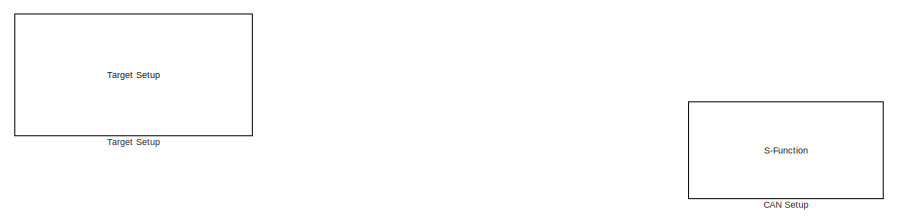
[diagram: root canvas - part 1/2, full width, top band]
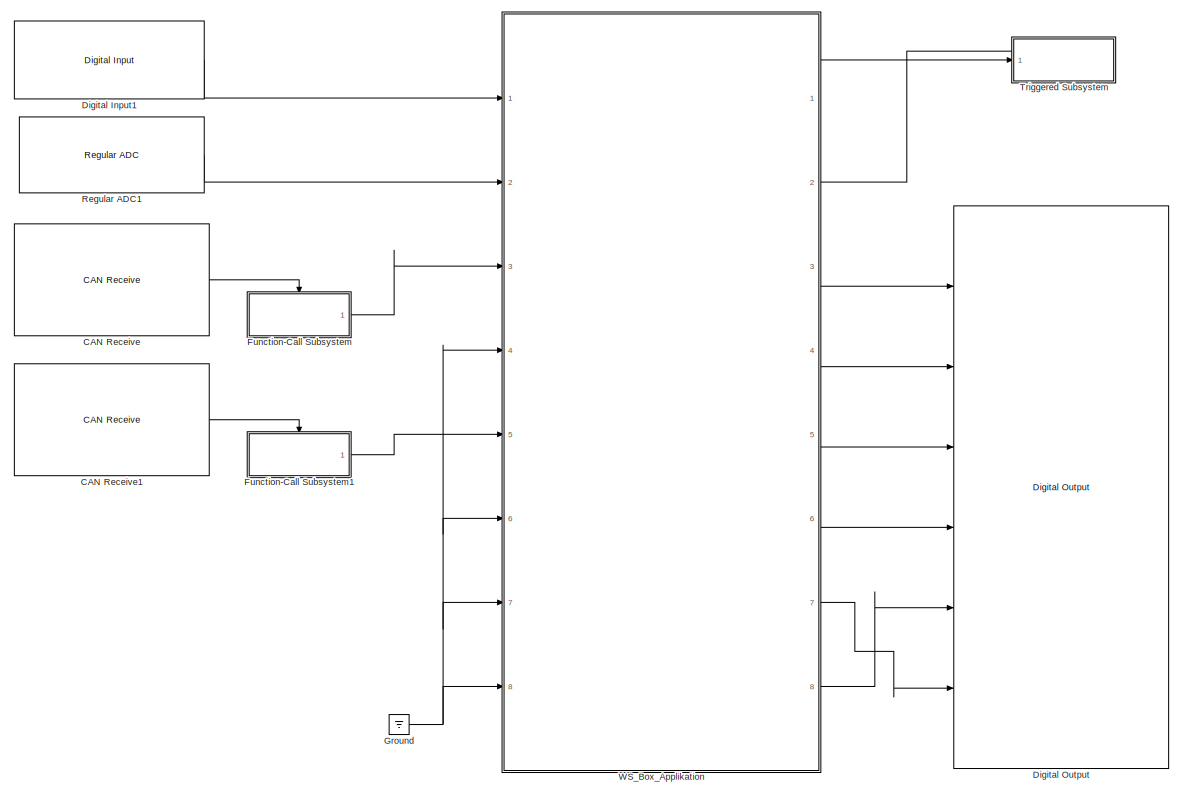
[diagram: root canvas - part 2/2, most of the canvas]
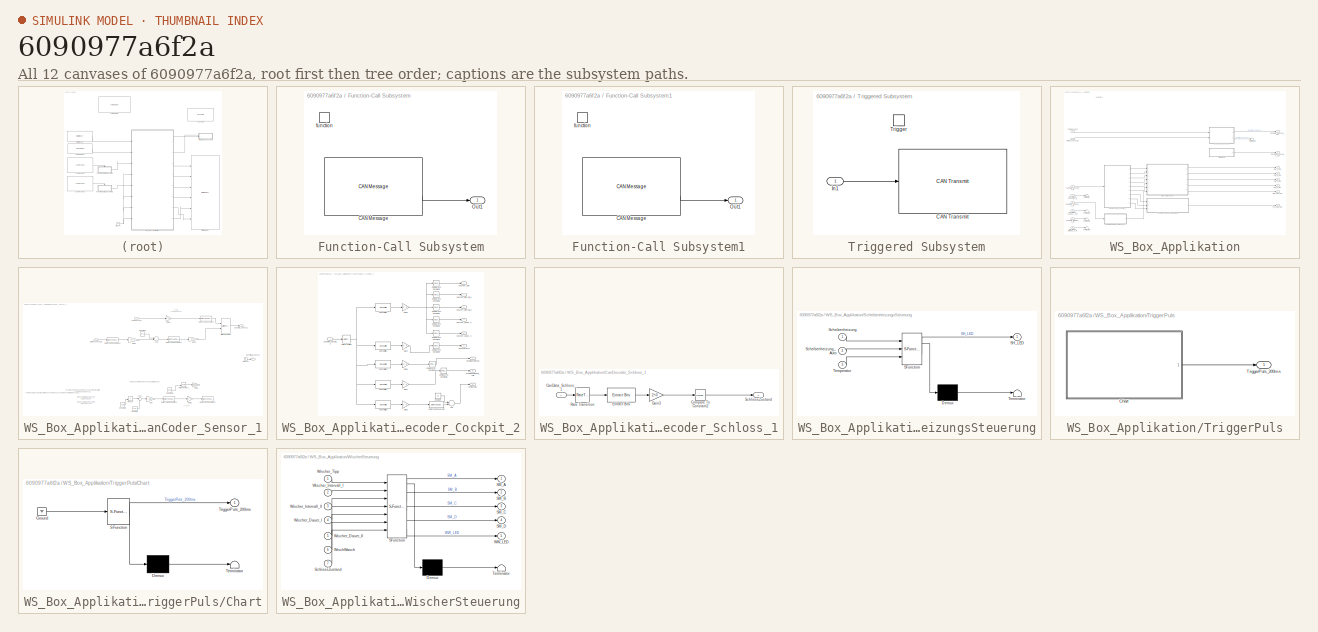
[diagram: thumbnail index - all 12 canvases of the model, root first then tree order]
MODEL slx_6090977a6f2a
KIND model
CONFIG AbsTol = auto
CONFIG EnableMultiTasking = off
CONFIG FixedStep = auto
CONFIG MaxStep = auto
CONFIG MinStep = auto
CONFIG PreLoadFcn = waijung.modelPreload; % Required for working with Waijung Blockset. Do not remove.
CONFIG RelTol = 1e-3
CONFIG SampleTimeConstraint = Unconstrained
CONFIG Solver = FixedStepAuto
CONFIG SolverName = FixedStepAuto
CONFIG StartTime = 0.0
CONFIG StopTime = 10.0
BLOCK [Reference] CAN Receive  REF=stm32f4_canbus_lib/CAN Receive
  Ports = [0, 1]
  SourceBlock = stm32f4_canbus_lib/CAN Receive
  SourceProductName = Waijung Blockset
  SourceType = stm32f4_can
BLOCK [Reference] CAN Receive1  REF=stm32f4_canbus_lib/CAN Receive
  Ports = [0, 1]
  SourceBlock = stm32f4_canbus_lib/CAN Receive
  SourceProductName = Waijung Blockset
  SourceType = stm32f4_can
BLOCK [S-Function] CAN Setup
  EnableBusSupport = off
  FunctionName = stm32f4_can
  Parameters = conf,canmodule,0,inputarray,outputarray,'','',confstr,sampletime,sampletimestr,blockid
  Ports = []
  SFcnIsStateOwnerBlock = off
  SFunctionDeploymentMode = off
BLOCK [Reference] Digital Input1  REF=stm32f4_io_lib/Digital Input
  Ports = [0, 1]
  SourceBlock = stm32f4_io_lib/Digital Input
  SourceProductName = Waijung Blockset
  SourceType = stm32f4_digital_input
BLOCK [Reference] Digital Output  REF=stm32f4_io_lib/Digital Output
  Ports = [6]
  SourceBlock = stm32f4_io_lib/Digital Output
  SourceProductName = Waijung Blockset
  SourceType = stm32f4_digital_output
BLOCK [SubSystem] Function-Call Subsystem
  Ports = [0, 1, 0, 1]
  RequestExecContextInheritance = off
  TreatAsAtomicUnit = on
  Variant = off
BLOCK [Reference] Function-Call Subsystem/CAN Message  REF=stm32f4_canbus_lib/CAN Message
  Ports = [0, 2]
  SourceBlock = stm32f4_canbus_lib/CAN Message
  SourceProductName = Waijung Blockset
  SourceType = stm32f4_can
BLOCK [Outport] Function-Call Subsystem/Out1
  IconDisplay = Port number
BLOCK [TriggerPort] Function-Call Subsystem/function
  Ports = []
  StatesWhenEnabling = held
  TriggerType = function-call
  VariantControl = Variant
BLOCK [SubSystem] Function-Call Subsystem1
  Ports = [0, 1, 0, 1]
  RequestExecContextInheritance = off
  TreatAsAtomicUnit = on
  Variant = off
BLOCK [Reference] Function-Call Subsystem1/CAN Message  REF=stm32f4_canbus_lib/CAN Message
  Ports = [0, 2]
  SourceBlock = stm32f4_canbus_lib/CAN Message
  SourceProductName = Waijung Blockset
  SourceType = stm32f4_can
BLOCK [Outport] Function-Call Subsystem1/Out1
  IconDisplay = Port number
BLOCK [TriggerPort] Function-Call Subsystem1/function
  Ports = []
  StatesWhenEnabling = held
  TriggerType = function-call
  VariantControl = Variant
BLOCK [Ground] Ground
BLOCK [Reference] Regular ADC1  REF=stm32f4_adc_lib/Regular ADC
  Ports = [0, 1]
  SourceBlock = stm32f4_adc_lib/Regular ADC
  SourceProductName = Waijung Blockset
  SourceType = stm32f4_regular_adc
BLOCK [Reference] Target Setup  REF=stm32f4_device_config_lib/Target Setup
  Ports = []
  Priority = 100
  SourceBlock = stm32f4_device_config_lib/Target Setup
  SourceProductName = Waijung Blockset
  SourceType = stm32f4_target_setup
BLOCK [SubSystem] Triggered Subsystem
  Ports = [1, 0, 0, 1]
  RequestExecContextInheritance = off
  TreatAsAtomicUnit = on
  Variant = off
BLOCK [Reference] Triggered Subsystem/CAN Transmit  REF=stm32f4_canbus_lib/CAN Transmit
  Ports = [1]
  SourceBlock = stm32f4_canbus_lib/CAN Transmit
  SourceProductName = Waijung Blockset
  SourceType = stm32f4_can
BLOCK [Inport] Triggered Subsystem/In1
  IconDisplay = Port number
BLOCK [TriggerPort] Triggered Subsystem/Trigger
  Ports = []
  StatesWhenEnabling = held
  VariantControl = Variant
BLOCK [SubSystem] WS_Box_Applikation
  Ports = [8, 8]
  RequestExecContextInheritance = off
  Variant = off
BLOCK [SubSystem] WS_Box_Applikation/CanCoder_Sensor_1
  Ports = [2, 2]
  RequestExecContextInheritance = off
  Variant = off
BLOCK [Sum] WS_Box_Applikation/CanCoder_Sensor_1/Add1
  InputSameDT = off
  Inputs = +-
  OutDataTypeStr = Inherit: Inherit via internal rule
  Ports = [2, 1]
  SaturateOnIntegerOverflow = off
BLOCK [Reference] WS_Box_Applikation/CanCoder_Sensor_1/Bitwise Operator3  REF=simulink/Logic and Bit
Operations/Bitwise
Operator
  Ports = [2, 1]
  SourceBlock = simulink/Logic and Bit\nOperations/Bitwise\nOperator
  SourceProductBaseCode = SL
  SourceType = Bitwise Operator
BLOCK [Outport] WS_Box_Applikation/CanCoder_Sensor_1/CanData_Sensor_1
  IconDisplay = Port number
BLOCK [Outport] WS_Box_Applikation/CanCoder_Sensor_1/CanTrigger_Sensor_1
  IconDisplay = Port number
  Port = 2
BLOCK [Constant] WS_Box_Applikation/CanCoder_Sensor_1/Constant
  Commented = on
  Value = 43.9
BLOCK [Constant] WS_Box_Applikation/CanCoder_Sensor_1/Constant1
  Value = 511
BLOCK [Constant] WS_Box_Applikation/CanCoder_Sensor_1/Constant2
  Commented = on
  Value = -13.8
BLOCK [Constant] WS_Box_Applikation/CanCoder_Sensor_1/Constant3
  Commented = on
  Value = -0.889
BLOCK [DataTypeConversion] WS_Box_Applikation/CanCoder_Sensor_1/Data Type Conversion
  OutDataTypeStr = uint16
  RndMeth = Floor
  SaturateOnIntegerOverflow = off
BLOCK [DataTypeConversion] WS_Box_Applikation/CanCoder_Sensor_1/Data Type Conversion1
  Commented = on
  OutDataTypeStr = uint16
  RndMeth = Floor
  SaturateOnIntegerOverflow = off
BLOCK [DataTypeConversion] WS_Box_Applikation/CanCoder_Sensor_1/Data Type Conversion2
  Commented = on
  OutDataTypeStr = uint16
  RndMeth = Floor
  SaturateOnIntegerOverflow = off
BLOCK [DataTypeConversion] WS_Box_Applikation/CanCoder_Sensor_1/Data Type Conversion3
  OutDataTypeStr = uint16
  RndMeth = Floor
  SaturateOnIntegerOverflow = off
BLOCK [DataTypeConversion] WS_Box_Applikation/CanCoder_Sensor_1/Data Type Conversion4
  OutDataTypeStr = uint16
  RndMeth = Floor
  SaturateOnIntegerOverflow = off
BLOCK [Inport] WS_Box_Applikation/CanCoder_Sensor_1/Distanzsensor_In
  IconDisplay = Port number
  Port = 2
BLOCK [Gain] WS_Box_Applikation/CanCoder_Sensor_1/Gain
  Commented = on
  Gain = 12.5
  OutDataTypeStr = Inherit: Inherit via internal rule
  ParamDataTypeStr = Inherit: Inherit via internal rule
  SaturateOnIntegerOverflow = off
BLOCK [Gain] WS_Box_Applikation/CanCoder_Sensor_1/Gain1
  Gain = 2^0
  OutDataTypeStr = Inherit: Inherit via internal rule
  ParamDataTypeStr = Inherit: Inherit via internal rule
  SaturateOnIntegerOverflow = off
BLOCK [Gain] WS_Box_Applikation/CanCoder_Sensor_1/Gain2
  Commented = on
  Gain = 2^1
  OutDataTypeStr = Inherit: Inherit via internal rule
  ParamDataTypeStr = Inherit: Inherit via internal rule
  SaturateOnIntegerOverflow = off
BLOCK [Gain] WS_Box_Applikation/CanCoder_Sensor_1/Gain3
  Gain = 2^1
  OutDataTypeStr = uint16
  ParamDataTypeStr = uint16
  SaturateOnIntegerOverflow = off
BLOCK [Gain] WS_Box_Applikation/CanCoder_Sensor_1/Gain4
  Gain = 2^-2
  OutDataTypeStr = Inherit: Inherit via internal rule
  ParamDataTypeStr = Inherit: Inherit via internal rule
  SaturateOnIntegerOverflow = off
BLOCK [Gain] WS_Box_Applikation/CanCoder_Sensor_1/Gain6
  Commented = on
  Gain = 9.3707
  OutDataTypeStr = Inherit: Inherit via internal rule
  ParamDataTypeStr = Inherit: Inherit via internal rule
  SaturateOnIntegerOverflow = off
BLOCK [Ground] WS_Box_Applikation/CanCoder_Sensor_1/Ground1
BLOCK [Inport] WS_Box_Applikation/CanCoder_Sensor_1/Lichtsensor_In
  IconDisplay = Port number
BLOCK [Math] WS_Box_Applikation/CanCoder_Sensor_1/Math Function1
  Commented = on
  Operator = pow
  Ports = [2, 1]
BLOCK [Product] WS_Box_Applikation/CanCoder_Sensor_1/Product
  Commented = on
  InputSameDT = off
  OutDataTypeStr = Inherit: Inherit via internal rule
  Ports = [2, 1]
  RndMeth = Floor
  SaturateOnIntegerOverflow = off
BLOCK [Sum] WS_Box_Applikation/CanCoder_Sensor_1/Sum
  Commented = on
  IconShape = round
  InputSameDT = off
  Inputs = |++
  OutDataTypeStr = Inherit: Inherit via internal rule
  Ports = [2, 1]
  SaturateOnIntegerOverflow = off
BLOCK [Inport] WS_Box_Applikation/CanData_Bremse_2_In
  IconDisplay = Port number
  Port = 7
BLOCK [Inport] WS_Box_Applikation/CanData_Cockpit_2_In
  IconDisplay = Port number
  Port = 3
BLOCK [Inport] WS_Box_Applikation/CanData_Schloss_1_In
  IconDisplay = Port number
  Port = 5
BLOCK [Outport] WS_Box_Applikation/CanData_Sensor_1_Out
  IconDisplay = Port number
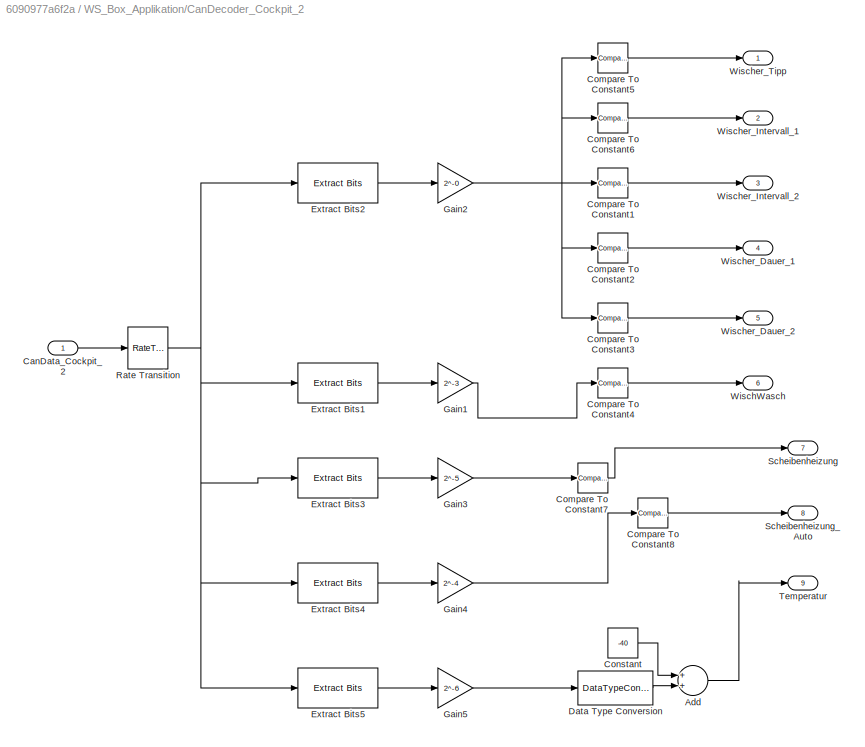
BLOCK [SubSystem] WS_Box_Applikation/CanDecoder_Cockpit_2
  Ports = [1, 9]
  RequestExecContextInheritance = off
  Variant = off
BLOCK [Sum] WS_Box_Applikation/CanDecoder_Cockpit_2/Add
  InputSameDT = off
  OutDataTypeStr = Inherit: Inherit via internal rule
  Ports = [2, 1]
  SaturateOnIntegerOverflow = off
BLOCK [Inport] WS_Box_Applikation/CanDecoder_Cockpit_2/CanData_Cockpit_2
  IconDisplay = Port number
BLOCK [Reference] WS_Box_Applikation/CanDecoder_Cockpit_2/Compare To Constant1  REF=simulink/Logic and Bit
Operations/Compare
To Constant
  Ports = [1, 1]
  SourceBlock = simulink/Logic and Bit\nOperations/Compare\nTo Constant
  SourceProductBaseCode = SL
  SourceType = Compare To Constant
BLOCK [Reference] WS_Box_Applikation/CanDecoder_Cockpit_2/Compare To Constant2  REF=simulink/Logic and Bit
Operations/Compare
To Constant
  Ports = [1, 1]
  SourceBlock = simulink/Logic and Bit\nOperations/Compare\nTo Constant
  SourceProductBaseCode = SL
  SourceType = Compare To Constant
BLOCK [Reference] WS_Box_Applikation/CanDecoder_Cockpit_2/Compare To Constant3  REF=simulink/Logic and Bit
Operations/Compare
To Constant
  Ports = [1, 1]
  SourceBlock = simulink/Logic and Bit\nOperations/Compare\nTo Constant
  SourceProductBaseCode = SL
  SourceType = Compare To Constant
BLOCK [Reference] WS_Box_Applikation/CanDecoder_Cockpit_2/Compare To Constant4  REF=simulink/Logic and Bit
Operations/Compare
To Constant
  Ports = [1, 1]
  SourceBlock = simulink/Logic and Bit\nOperations/Compare\nTo Constant
  SourceProductBaseCode = SL
  SourceType = Compare To Constant
BLOCK [Reference] WS_Box_Applikation/CanDecoder_Cockpit_2/Compare To Constant5  REF=simulink/Logic and Bit
Operations/Compare
To Constant
  Ports = [1, 1]
  SourceBlock = simulink/Logic and Bit\nOperations/Compare\nTo Constant
  SourceProductBaseCode = SL
  SourceType = Compare To Constant
BLOCK [Reference] WS_Box_Applikation/CanDecoder_Cockpit_2/Compare To Constant6  REF=simulink/Logic and Bit
Operations/Compare
To Constant
  Ports = [1, 1]
  SourceBlock = simulink/Logic and Bit\nOperations/Compare\nTo Constant
  SourceProductBaseCode = SL
  SourceType = Compare To Constant
BLOCK [Reference] WS_Box_Applikation/CanDecoder_Cockpit_2/Compare To Constant7  REF=simulink/Logic and Bit
Operations/Compare
To Constant
  Ports = [1, 1]
  SourceBlock = simulink/Logic and Bit\nOperations/Compare\nTo Constant
  SourceProductBaseCode = SL
  SourceType = Compare To Constant
BLOCK [Reference] WS_Box_Applikation/CanDecoder_Cockpit_2/Compare To Constant8  REF=simulink/Logic and Bit
Operations/Compare
To Constant
  Ports = [1, 1]
  SourceBlock = simulink/Logic and Bit\nOperations/Compare\nTo Constant
  SourceProductBaseCode = SL
  SourceType = Compare To Constant
BLOCK [Constant] WS_Box_Applikation/CanDecoder_Cockpit_2/Constant
  Value = -40
BLOCK [DataTypeConversion] WS_Box_Applikation/CanDecoder_Cockpit_2/Data Type Conversion
  SaturateOnIntegerOverflow = off
BLOCK [Reference] WS_Box_Applikation/CanDecoder_Cockpit_2/Extract Bits1  REF=simulink/Logic and Bit
Operations/Extract Bits
  Ports = [1, 1]
  SourceBlock = simulink/Logic and Bit\nOperations/Extract Bits
  SourceProductBaseCode = SL
  SourceType = Extract Bits
BLOCK [Reference] WS_Box_Applikation/CanDecoder_Cockpit_2/Extract Bits2  REF=simulink/Logic and Bit
Operations/Extract Bits
  Ports = [1, 1]
  SourceBlock = simulink/Logic and Bit\nOperations/Extract Bits
  SourceProductBaseCode = SL
  SourceType = Extract Bits
BLOCK [Reference] WS_Box_Applikation/CanDecoder_Cockpit_2/Extract Bits3  REF=simulink/Logic and Bit
Operations/Extract Bits
  Ports = [1, 1]
  SourceBlock = simulink/Logic and Bit\nOperations/Extract Bits
  SourceProductBaseCode = SL
  SourceType = Extract Bits
BLOCK [Reference] WS_Box_Applikation/CanDecoder_Cockpit_2/Extract Bits4  REF=simulink/Logic and Bit
Operations/Extract Bits
  Ports = [1, 1]
  SourceBlock = simulink/Logic and Bit\nOperations/Extract Bits
  SourceProductBaseCode = SL
  SourceType = Extract Bits
BLOCK [Reference] WS_Box_Applikation/CanDecoder_Cockpit_2/Extract Bits5  REF=simulink/Logic and Bit
Operations/Extract Bits
  Ports = [1, 1]
  SourceBlock = simulink/Logic and Bit\nOperations/Extract Bits
  SourceProductBaseCode = SL
  SourceType = Extract Bits
BLOCK [Gain] WS_Box_Applikation/CanDecoder_Cockpit_2/Gain1
  Gain = 2^-3
  OutDataTypeStr = Inherit: Inherit via internal rule
  ParamDataTypeStr = Inherit: Inherit via internal rule
  SaturateOnIntegerOverflow = off
BLOCK [Gain] WS_Box_Applikation/CanDecoder_Cockpit_2/Gain2
  Gain = 2^-0
  OutDataTypeStr = Inherit: Inherit via internal rule
  ParamDataTypeStr = Inherit: Inherit via internal rule
  SaturateOnIntegerOverflow = off
BLOCK [Gain] WS_Box_Applikation/CanDecoder_Cockpit_2/Gain3
  Gain = 2^-5
  OutDataTypeStr = Inherit: Inherit via internal rule
  ParamDataTypeStr = Inherit: Inherit via internal rule
  SaturateOnIntegerOverflow = off
BLOCK [Gain] WS_Box_Applikation/CanDecoder_Cockpit_2/Gain4
  Gain = 2^-4
  OutDataTypeStr = Inherit: Inherit via internal rule
  ParamDataTypeStr = Inherit: Inherit via internal rule
  SaturateOnIntegerOverflow = off
BLOCK [Gain] WS_Box_Applikation/CanDecoder_Cockpit_2/Gain5
  Gain = 2^-6
  OutDataTypeStr = Inherit: Inherit via internal rule
  ParamDataTypeStr = Inherit: Inherit via internal rule
  SaturateOnIntegerOverflow = off
BLOCK [RateTransition] WS_Box_Applikation/CanDecoder_Cockpit_2/Rate Transition
  Deterministic = off
  OutPortSampleTimeOpt = Inherit
BLOCK [Outport] WS_Box_Applikation/CanDecoder_Cockpit_2/Scheibenheizung
  IconDisplay = Port number
  Port = 7
BLOCK [Outport] WS_Box_Applikation/CanDecoder_Cockpit_2/Scheibenheizung_Auto
  IconDisplay = Port number
  Port = 8
BLOCK [Outport] WS_Box_Applikation/CanDecoder_Cockpit_2/Temperatur
  IconDisplay = Port number
  Port = 9
BLOCK [Outport] WS_Box_Applikation/CanDecoder_Cockpit_2/WischWasch
  IconDisplay = Port number
  Port = 6
BLOCK [Outport] WS_Box_Applikation/CanDecoder_Cockpit_2/Wischer_Dauer_1
  IconDisplay = Port number
  Port = 4
BLOCK [Outport] WS_Box_Applikation/CanDecoder_Cockpit_2/Wischer_Dauer_2
  IconDisplay = Port number
  Port = 5
BLOCK [Outport] WS_Box_Applikation/CanDecoder_Cockpit_2/Wischer_Intervall_1
  IconDisplay = Port number
  Port = 2
BLOCK [Outport] WS_Box_Applikation/CanDecoder_Cockpit_2/Wischer_Intervall_2
  IconDisplay = Port number
  Port = 3
BLOCK [Outport] WS_Box_Applikation/CanDecoder_Cockpit_2/Wischer_Tipp
  IconDisplay = Port number
BLOCK [SubSystem] WS_Box_Applikation/CanDecoder_Schloss_1
  Ports = [1, 1]
  RequestExecContextInheritance = off
  Variant = off
BLOCK [Inport] WS_Box_Applikation/CanDecoder_Schloss_1/CanData_Schloss_1
  IconDisplay = Port number
BLOCK [Reference] WS_Box_Applikation/CanDecoder_Schloss_1/Compare To Constant2  REF=simulink/Logic and Bit
Operations/Compare
To Constant
  Ports = [1, 1]
  SourceBlock = simulink/Logic and Bit\nOperations/Compare\nTo Constant
  SourceProductBaseCode = SL
  SourceType = Compare To Constant
BLOCK [Reference] WS_Box_Applikation/CanDecoder_Schloss_1/Extract Bits  REF=simulink/Logic and Bit
Operations/Extract Bits
  Ports = [1, 1]
  SourceBlock = simulink/Logic and Bit\nOperations/Extract Bits
  SourceProductBaseCode = SL
  SourceType = Extract Bits
BLOCK [Gain] WS_Box_Applikation/CanDecoder_Schloss_1/Gain3
  Gain = 2^-0
  OutDataTypeStr = uint8
  ParamDataTypeStr = Inherit: Inherit via internal rule
  SaturateOnIntegerOverflow = off
BLOCK [RateTransition] WS_Box_Applikation/CanDecoder_Schloss_1/Rate Transition
  Deterministic = off
  OutPortSampleTimeOpt = Inherit
BLOCK [Outport] WS_Box_Applikation/CanDecoder_Schloss_1/SchliessZustand
  IconDisplay = Port number
BLOCK [Inport] WS_Box_Applikation/CanTrigger_Bremse_2_In
  IconDisplay = Port number
  Port = 8
BLOCK [Inport] WS_Box_Applikation/CanTrigger_Cockpit_2_In
  IconDisplay = Port number
  Port = 4
BLOCK [Inport] WS_Box_Applikation/CanTrigger_Schloss_1_In
  IconDisplay = Port number
  Port = 6
BLOCK [Outport] WS_Box_Applikation/CanTrigger_Sensor_1_Out
  IconDisplay = Port number
  Port = 2
BLOCK [Inport] WS_Box_Applikation/Distanzsensor_In
  IconDisplay = Port number
  Port = 2
BLOCK [Inport] WS_Box_Applikation/Lichtsensor_In
  IconDisplay = Port number
BLOCK [Outport] WS_Box_Applikation/SH_LED_Out
  IconDisplay = Port number
  Port = 8
BLOCK [Outport] WS_Box_Applikation/SM_A_Out
  IconDisplay = Port number
  Port = 3
BLOCK [Outport] WS_Box_Applikation/SM_B_Out
  IconDisplay = Port number
  Port = 4
BLOCK [Outport] WS_Box_Applikation/SM_C_Out
  IconDisplay = Port number
  Port = 5
BLOCK [Outport] WS_Box_Applikation/SM_D_Out
  IconDisplay = Port number
  Port = 6
BLOCK [SubSystem] WS_Box_Applikation/ScheibenheizungsSteuerung
  ErrorFcn = Stateflow.Translate.translate
  PermitHierarchicalResolution = ExplicitOnly
  Ports = [3, 1]
  RequestExecContextInheritance = off
  SFBlockType = Chart
  TreatAsAtomicUnit = on
  Variant = off
BLOCK [Demux] WS_Box_Applikation/ScheibenheizungsSteuerung/ Demux 
  DisplayOption = bar
  Outputs = 1
  Ports = [1, 1]
BLOCK [S-Function] WS_Box_Applikation/ScheibenheizungsSteuerung/ SFunction 
  EnableBusSupport = on
  FunctionName = sf_sfun
  PortCounts = [3 2]
  Ports = [3, 2]
  SFcnIsStateOwnerBlock = off
  SFunctionDeploymentMode = off
  Tag = Stateflow S-Function WischerModul_0112 6
BLOCK [Terminator] WS_Box_Applikation/ScheibenheizungsSteuerung/ Terminator 
BLOCK [Outport] WS_Box_Applikation/ScheibenheizungsSteuerung/SH_LED
  IconDisplay = Port number
BLOCK [Inport] WS_Box_Applikation/ScheibenheizungsSteuerung/Scheibenheizung
  IconDisplay = Port number
BLOCK [Inport] WS_Box_Applikation/ScheibenheizungsSteuerung/Scheibenheizung_Auto
  IconDisplay = Port number
  Port = 2
BLOCK [Inport] WS_Box_Applikation/ScheibenheizungsSteuerung/Temperatur
  IconDisplay = Port number
  Port = 3
BLOCK [Terminator] WS_Box_Applikation/Terminator
BLOCK [Terminator] WS_Box_Applikation/Terminator2
BLOCK [Terminator] WS_Box_Applikation/Terminator3
BLOCK [Terminator] WS_Box_Applikation/Terminator4
BLOCK [Terminator] WS_Box_Applikation/Terminator5
BLOCK [SubSystem] WS_Box_Applikation/TriggerPuls
  Ports = [0, 1]
  RequestExecContextInheritance = off
  Variant = off
BLOCK [SubSystem] WS_Box_Applikation/TriggerPuls/Chart
  ErrorFcn = Stateflow.Translate.translate
  PermitHierarchicalResolution = ExplicitOnly
  Ports = [0, 1]
  RequestExecContextInheritance = off
  SFBlockType = Chart
  TreatAsAtomicUnit = on
  Variant = off
BLOCK [Demux] WS_Box_Applikation/TriggerPuls/Chart/ Demux 
  DisplayOption = bar
  Outputs = 1
  Ports = [1, 1]
BLOCK [Ground] WS_Box_Applikation/TriggerPuls/Chart/ Ground 
BLOCK [S-Function] WS_Box_Applikation/TriggerPuls/Chart/ SFunction 
  EnableBusSupport = on
  FunctionName = sf_sfun
  PortCounts = [1 2]
  Ports = [1, 2]
  SFcnIsStateOwnerBlock = off
  SFunctionDeploymentMode = off
  Tag = Stateflow S-Function WischerModul_0112 8
BLOCK [Terminator] WS_Box_Applikation/TriggerPuls/Chart/ Terminator 
BLOCK [Outport] WS_Box_Applikation/TriggerPuls/Chart/TriggerPuls_200ms
  IconDisplay = Port number
  VectorParamsAs1DForOutWhenUnconnected = on
BLOCK [Outport] WS_Box_Applikation/TriggerPuls/TriggerPuls_200ms
  IconDisplay = Port number
BLOCK [Outport] WS_Box_Applikation/WW_LED_Out
  IconDisplay = Port number
  Port = 7
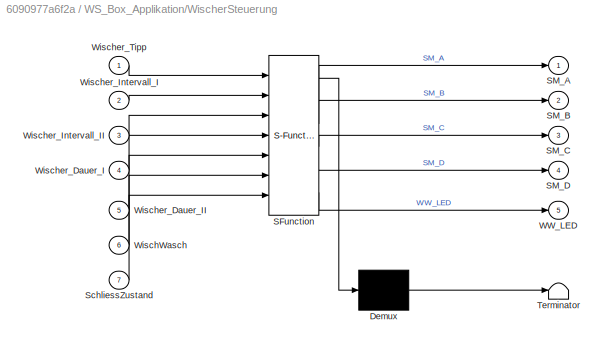
BLOCK [SubSystem] WS_Box_Applikation/WischerSteuerung
  ErrorFcn = Stateflow.Translate.translate
  PermitHierarchicalResolution = ExplicitOnly
  Ports = [7, 5]
  RequestExecContextInheritance = off
  SFBlockType = Chart
  TreatAsAtomicUnit = on
  Variant = off
BLOCK [Demux] WS_Box_Applikation/WischerSteuerung/ Demux 
  DisplayOption = bar
  Outputs = 1
  Ports = [1, 1]
BLOCK [S-Function] WS_Box_Applikation/WischerSteuerung/ SFunction 
  EnableBusSupport = on
  FunctionName = sf_sfun
  PortCounts = [7 6]
  Ports = [7, 6]
  SFcnIsStateOwnerBlock = off
  SFunctionDeploymentMode = off
  Tag = Stateflow S-Function WischerModul_0112 5
BLOCK [Terminator] WS_Box_Applikation/WischerSteuerung/ Terminator 
BLOCK [Outport] WS_Box_Applikation/WischerSteuerung/SM_A
  IconDisplay = Port number
BLOCK [Outport] WS_Box_Applikation/WischerSteuerung/SM_B
  IconDisplay = Port number
  Port = 2
BLOCK [Outport] WS_Box_Applikation/WischerSteuerung/SM_C
  IconDisplay = Port number
  Port = 3
BLOCK [Outport] WS_Box_Applikation/WischerSteuerung/SM_D
  IconDisplay = Port number
  Port = 4
BLOCK [Inport] WS_Box_Applikation/WischerSteuerung/SchliessZustand
  IconDisplay = Port number
  Port = 7
BLOCK [Outport] WS_Box_Applikation/WischerSteuerung/WW_LED
  IconDisplay = Port number
  Port = 5
BLOCK [Inport] WS_Box_Applikation/WischerSteuerung/WischWasch
  IconDisplay = Port number
  Port = 6
BLOCK [Inport] WS_Box_Applikation/WischerSteuerung/Wischer_Dauer_I
  IconDisplay = Port number
  Port = 4
BLOCK [Inport] WS_Box_Applikation/WischerSteuerung/Wischer_Dauer_II
  IconDisplay = Port number
  Port = 5
BLOCK [Inport] WS_Box_Applikation/WischerSteuerung/Wischer_Intervall_I
  IconDisplay = Port number
  Port = 2
BLOCK [Inport] WS_Box_Applikation/WischerSteuerung/Wischer_Intervall_II
  IconDisplay = Port number
  Port = 3
BLOCK [Inport] WS_Box_Applikation/WischerSteuerung/Wischer_Tipp
  IconDisplay = Port number
ANNOTATION WS_Box_Applikation: Applikation
ANNOTATION WS_Box_Applikation/CanCoder_Sensor_1: 1 = hell 0 = dunkel????
ANNOTATION WS_Box_Applikation/CanCoder_Sensor_1: 40cm im Laboraufbau entsprechen 500m in der Realität! -> Saklierungsfaktor = 12,5
ANNOTATION WS_Box_Applikation/CanCoder_Sensor_1: 2^-2???
ANNOTATION WS_Box_Applikation/CanCoder_Sensor_1: Anmerkung: Im Laboraufbau wird angenommen, dass der verwendete Infrarotsensor die Entfernung linear vermisst. Die Grenzen des Messbereichs sollen dabei 0m bzw. 500m entsprechen.
ANNOTATION WS_Box_Applikation/CanCoder_Sensor_1: Die Punkte für die Regression: (3 ; 2,5) und (0,3 ; 40) ergeben die lineare Funktion: f(x) = -13,8·x+43,9
ANNOTATION WS_Box_Applikation/CanCoder_Sensor_1: Regression mit mehreren Punkten ergibt (präziser):
LINE CAN Receive1:1 -> Function-Call Subsystem1:trigger
LINE CAN Receive:1 -> Function-Call Subsystem:trigger
LINE Digital Input1:1 -> WS_Box_Applikation:1
LINE Function-Call Subsystem/CAN Message:2 -> Function-Call Subsystem/Out1:1
LINE Function-Call Subsystem1/CAN Message:2 -> Function-Call Subsystem1/Out1:1
LINE Function-Call Subsystem1:1 -> WS_Box_Applikation:5
LINE Function-Call Subsystem:1 -> WS_Box_Applikation:3
NET Ground:1 -> WS_Box_Applikation:4, WS_Box_Applikation:6, WS_Box_Applikation:7, WS_Box_Applikation:8
LINE Regular ADC1:1 -> WS_Box_Applikation:2
LINE Triggered Subsystem/In1:1 -> Triggered Subsystem/CAN Transmit:1
LINE WS_Box_Applikation/CanCoder_Sensor_1/Add1:1 -> WS_Box_Applikation/CanCoder_Sensor_1/Data Type Conversion3:1
LINE WS_Box_Applikation/CanCoder_Sensor_1/Bitwise Operator3:1 -> WS_Box_Applikation/CanCoder_Sensor_1/CanData_Sensor_1:1
LINE WS_Box_Applikation/CanCoder_Sensor_1/Constant1:1 -> WS_Box_Applikation/CanCoder_Sensor_1/Add1:1
LINE WS_Box_Applikation/CanCoder_Sensor_1/Constant2:1 -> WS_Box_Applikation/CanCoder_Sensor_1/Product:2
LINE WS_Box_Applikation/CanCoder_Sensor_1/Constant3:1 -> WS_Box_Applikation/CanCoder_Sensor_1/Math Function1:2
LINE WS_Box_Applikation/CanCoder_Sensor_1/Constant:1 -> WS_Box_Applikation/CanCoder_Sensor_1/Sum:2
LINE WS_Box_Applikation/CanCoder_Sensor_1/Data Type Conversion2:1 -> WS_Box_Applikation/CanCoder_Sensor_1/Gain2:1
LINE WS_Box_Applikation/CanCoder_Sensor_1/Data Type Conversion3:1 -> WS_Box_Applikation/CanCoder_Sensor_1/Gain3:1
LINE WS_Box_Applikation/CanCoder_Sensor_1/Data Type Conversion4:1 -> WS_Box_Applikation/CanCoder_Sensor_1/Gain4:1
LINE WS_Box_Applikation/CanCoder_Sensor_1/Data Type Conversion:1 -> WS_Box_Applikation/CanCoder_Sensor_1/Bitwise Operator3:1
LINE WS_Box_Applikation/CanCoder_Sensor_1/Distanzsensor_In:1 -> WS_Box_Applikation/CanCoder_Sensor_1/Data Type Conversion4:1
LINE WS_Box_Applikation/CanCoder_Sensor_1/Gain1:1 -> WS_Box_Applikation/CanCoder_Sensor_1/Data Type Conversion:1
LINE WS_Box_Applikation/CanCoder_Sensor_1/Gain2:1 -> WS_Box_Applikation/CanCoder_Sensor_1/Data Type Conversion1:1
LINE WS_Box_Applikation/CanCoder_Sensor_1/Gain3:1 -> WS_Box_Applikation/CanCoder_Sensor_1/Bitwise Operator3:2
LINE WS_Box_Applikation/CanCoder_Sensor_1/Gain4:1 -> WS_Box_Applikation/CanCoder_Sensor_1/Add1:2
LINE WS_Box_Applikation/CanCoder_Sensor_1/Gain:1 -> WS_Box_Applikation/CanCoder_Sensor_1/Data Type Conversion2:1
LINE WS_Box_Applikation/CanCoder_Sensor_1/Ground1:1 -> WS_Box_Applikation/CanCoder_Sensor_1/CanTrigger_Sensor_1:1
LINE WS_Box_Applikation/CanCoder_Sensor_1/Lichtsensor_In:1 -> WS_Box_Applikation/CanCoder_Sensor_1/Gain1:1
LINE WS_Box_Applikation/CanCoder_Sensor_1/Math Function1:1 -> WS_Box_Applikation/CanCoder_Sensor_1/Gain6:1
LINE WS_Box_Applikation/CanCoder_Sensor_1/Product:1 -> WS_Box_Applikation/CanCoder_Sensor_1/Sum:1
LINE WS_Box_Applikation/CanCoder_Sensor_1/Sum:1 -> WS_Box_Applikation/CanCoder_Sensor_1/Gain:1
LINE WS_Box_Applikation/CanCoder_Sensor_1:1 -> WS_Box_Applikation/CanData_Sensor_1_Out:1
LINE WS_Box_Applikation/CanCoder_Sensor_1:2 -> WS_Box_Applikation/Terminator2:1
LINE WS_Box_Applikation/CanData_Bremse_2_In:1 -> WS_Box_Applikation/Terminator4:1
LINE WS_Box_Applikation/CanData_Cockpit_2_In:1 -> WS_Box_Applikation/CanDecoder_Cockpit_2:1
LINE WS_Box_Applikation/CanData_Schloss_1_In:1 -> WS_Box_Applikation/CanDecoder_Schloss_1:1
LINE WS_Box_Applikation/CanDecoder_Cockpit_2/Add:1 -> WS_Box_Applikation/CanDecoder_Cockpit_2/Temperatur:1
LINE WS_Box_Applikation/CanDecoder_Cockpit_2/CanData_Cockpit_2:1 -> WS_Box_Applikation/CanDecoder_Cockpit_2/Rate Transition:1
LINE WS_Box_Applikation/CanDecoder_Cockpit_2/Compare To Constant1:1 -> WS_Box_Applikation/CanDecoder_Cockpit_2/Wischer_Intervall_2:1
LINE WS_Box_Applikation/CanDecoder_Cockpit_2/Compare To Constant2:1 -> WS_Box_Applikation/CanDecoder_Cockpit_2/Wischer_Dauer_1:1
LINE WS_Box_Applikation/CanDecoder_Cockpit_2/Compare To Constant3:1 -> WS_Box_Applikation/CanDecoder_Cockpit_2/Wischer_Dauer_2:1
LINE WS_Box_Applikation/CanDecoder_Cockpit_2/Compare To Constant4:1 -> WS_Box_Applikation/CanDecoder_Cockpit_2/WischWasch:1
LINE WS_Box_Applikation/CanDecoder_Cockpit_2/Compare To Constant5:1 -> WS_Box_Applikation/CanDecoder_Cockpit_2/Wischer_Tipp:1
LINE WS_Box_Applikation/CanDecoder_Cockpit_2/Compare To Constant6:1 -> WS_Box_Applikation/CanDecoder_Cockpit_2/Wischer_Intervall_1:1
LINE WS_Box_Applikation/CanDecoder_Cockpit_2/Compare To Constant7:1 -> WS_Box_Applikation/CanDecoder_Cockpit_2/Scheibenheizung:1
LINE WS_Box_Applikation/CanDecoder_Cockpit_2/Compare To Constant8:1 -> WS_Box_Applikation/CanDecoder_Cockpit_2/Scheibenheizung_Auto:1
LINE WS_Box_Applikation/CanDecoder_Cockpit_2/Constant:1 -> WS_Box_Applikation/CanDecoder_Cockpit_2/Add:1
LINE WS_Box_Applikation/CanDecoder_Cockpit_2/Data Type Conversion:1 -> WS_Box_Applikation/CanDecoder_Cockpit_2/Add:2
LINE WS_Box_Applikation/CanDecoder_Cockpit_2/Extract Bits1:1 -> WS_Box_Applikation/CanDecoder_Cockpit_2/Gain1:1
LINE WS_Box_Applikation/CanDecoder_Cockpit_2/Extract Bits2:1 -> WS_Box_Applikation/CanDecoder_Cockpit_2/Gain2:1
LINE WS_Box_Applikation/CanDecoder_Cockpit_2/Extract Bits3:1 -> WS_Box_Applikation/CanDecoder_Cockpit_2/Gain3:1
LINE WS_Box_Applikation/CanDecoder_Cockpit_2/Extract Bits4:1 -> WS_Box_Applikation/CanDecoder_Cockpit_2/Gain4:1
LINE WS_Box_Applikation/CanDecoder_Cockpit_2/Extract Bits5:1 -> WS_Box_Applikation/CanDecoder_Cockpit_2/Gain5:1
LINE WS_Box_Applikation/CanDecoder_Cockpit_2/Gain1:1 -> WS_Box_Applikation/CanDecoder_Cockpit_2/Compare To Constant4:1
NET WS_Box_Applikation/CanDecoder_Cockpit_2/Gain2:1 -> WS_Box_Applikation/CanDecoder_Cockpit_2/Compare To Constant1:1, WS_Box_Applikation/CanDecoder_Cockpit_2/Compare To Constant2:1, WS_Box_Applikation/CanDecoder_Cockpit_2/Compare To Constant3:1, WS_Box_Applikation/CanDecoder_Cockpit_2/Compare To Constant5:1, WS_Box_Applikation/CanDecoder_Cockpit_2/Compare To Constant6:1
LINE WS_Box_Applikation/CanDecoder_Cockpit_2/Gain3:1 -> WS_Box_Applikation/CanDecoder_Cockpit_2/Compare To Constant7:1
LINE WS_Box_Applikation/CanDecoder_Cockpit_2/Gain4:1 -> WS_Box_Applikation/CanDecoder_Cockpit_2/Compare To Constant8:1
LINE WS_Box_Applikation/CanDecoder_Cockpit_2/Gain5:1 -> WS_Box_Applikation/CanDecoder_Cockpit_2/Data Type Conversion:1
NET WS_Box_Applikation/CanDecoder_Cockpit_2/Rate Transition:1 -> WS_Box_Applikation/CanDecoder_Cockpit_2/Extract Bits1:1, WS_Box_Applikation/CanDecoder_Cockpit_2/Extract Bits2:1, WS_Box_Applikation/CanDecoder_Cockpit_2/Extract Bits3:1, WS_Box_Applikation/CanDecoder_Cockpit_2/Extract Bits4:1, WS_Box_Applikation/CanDecoder_Cockpit_2/Extract Bits5:1
LINE WS_Box_Applikation/CanDecoder_Cockpit_2:1 -> WS_Box_Applikation/WischerSteuerung:1
LINE WS_Box_Applikation/CanDecoder_Cockpit_2:2 -> WS_Box_Applikation/WischerSteuerung:2
LINE WS_Box_Applikation/CanDecoder_Cockpit_2:3 -> WS_Box_Applikation/WischerSteuerung:3
LINE WS_Box_Applikation/CanDecoder_Cockpit_2:4 -> WS_Box_Applikation/WischerSteuerung:4
LINE WS_Box_Applikation/CanDecoder_Cockpit_2:5 -> WS_Box_Applikation/WischerSteuerung:5
LINE WS_Box_Applikation/CanDecoder_Cockpit_2:6 -> WS_Box_Applikation/WischerSteuerung:6
LINE WS_Box_Applikation/CanDecoder_Cockpit_2:7 -> WS_Box_Applikation/ScheibenheizungsSteuerung:1
LINE WS_Box_Applikation/CanDecoder_Cockpit_2:8 -> WS_Box_Applikation/ScheibenheizungsSteuerung:2
LINE WS_Box_Applikation/CanDecoder_Cockpit_2:9 -> WS_Box_Applikation/ScheibenheizungsSteuerung:3
LINE WS_Box_Applikation/CanDecoder_Schloss_1/CanData_Schloss_1:1 -> WS_Box_Applikation/CanDecoder_Schloss_1/Rate Transition:1
LINE WS_Box_Applikation/CanDecoder_Schloss_1/Compare To Constant2:1 -> WS_Box_Applikation/CanDecoder_Schloss_1/SchliessZustand:1
LINE WS_Box_Applikation/CanDecoder_Schloss_1/Extract Bits:1 -> WS_Box_Applikation/CanDecoder_Schloss_1/Gain3:1
LINE WS_Box_Applikation/CanDecoder_Schloss_1/Gain3:1 -> WS_Box_Applikation/CanDecoder_Schloss_1/Compare To Constant2:1
LINE WS_Box_Applikation/CanDecoder_Schloss_1/Rate Transition:1 -> WS_Box_Applikation/CanDecoder_Schloss_1/Extract Bits:1
LINE WS_Box_Applikation/CanDecoder_Schloss_1:1 -> WS_Box_Applikation/WischerSteuerung:7
LINE WS_Box_Applikation/CanTrigger_Bremse_2_In:1 -> WS_Box_Applikation/Terminator5:1
LINE WS_Box_Applikation/CanTrigger_Cockpit_2_In:1 -> WS_Box_Applikation/Terminator:1
LINE WS_Box_Applikation/CanTrigger_Schloss_1_In:1 -> WS_Box_Applikation/Terminator3:1
LINE WS_Box_Applikation/Distanzsensor_In:1 -> WS_Box_Applikation/CanCoder_Sensor_1:2
LINE WS_Box_Applikation/Lichtsensor_In:1 -> WS_Box_Applikation/CanCoder_Sensor_1:1
LINE WS_Box_Applikation/ScheibenheizungsSteuerung:1 -> WS_Box_Applikation/SH_LED_Out:1
LINE WS_Box_Applikation/TriggerPuls/Chart:1 -> WS_Box_Applikation/TriggerPuls/TriggerPuls_200ms:1
LINE WS_Box_Applikation/TriggerPuls:1 -> WS_Box_Applikation/CanTrigger_Sensor_1_Out:1
LINE WS_Box_Applikation/WischerSteuerung:1 -> WS_Box_Applikation/SM_A_Out:1
LINE WS_Box_Applikation/WischerSteuerung:2 -> WS_Box_Applikation/SM_B_Out:1
LINE WS_Box_Applikation/WischerSteuerung:3 -> WS_Box_Applikation/SM_C_Out:1
LINE WS_Box_Applikation/WischerSteuerung:4 -> WS_Box_Applikation/SM_D_Out:1
LINE WS_Box_Applikation/WischerSteuerung:5 -> WS_Box_Applikation/WW_LED_Out:1
LINE WS_Box_Applikation:1 -> Triggered Subsystem:1
LINE WS_Box_Applikation:2 -> Triggered Subsystem:trigger
LINE WS_Box_Applikation:3 -> Digital Output:1
LINE WS_Box_Applikation:4 -> Digital Output:2
LINE WS_Box_Applikation:5 -> Digital Output:3
LINE WS_Box_Applikation:6 -> Digital Output:4
LINE WS_Box_Applikation:7 -> Digital Output:6
LINE WS_Box_Applikation:8 -> Digital Output:5
note: NET lines group one-source signal fan-out (src -> all destinations, sorted); 1:1 wires keep LINE
CHART WS_Box_Applikation/WischerSteuerung states=30 transitions=43
  STATE_LABEL 'Wischer_AUS\nentry:\nWW_LED=false;\nSM_A=false;\nSM_B=false;\nSM_C=false;\nSM_D=false;'
  STATE_LABEL 'Spruehen\nentry:\nWW_LED=true;\nWW_Mode=true;'
  STATE_LABEL 'Wischer_AN'
  STATE_LABEL 'Wischbewegung\nentry:\nSM_A=false;\nSM_B=false;\nSM_C=false;\nSM_D=false;\nStep=0;\nCount=0;\n'
  STATE_LABEL 'Dauertippen'
  STATE_LABEL 'Hinwueschen'
  STATE_LABEL 'A\nentry:\nSM_A=true;\nSM_B=false;\nSM_C=false;\nSM_D=false;\n'
  STATE_LABEL 'B\nentry:\nSM_A=false;\nSM_B=true;\nSM_C=false;\nSM_D=false;\n'
  STATE_LABEL 'D\nentry:\nSM_A=false;\nSM_B=false;\nSM_C=false;\nSM_D=true;\n'
  STATE_LABEL 'C\nentry:\nSM_A=false;\nSM_B=false;\nSM_C=true;\nSM_D=false;\n'
  STATE_LABEL '{Count=Count+1}'
  STATE_LABEL 'after(delay,sec){Step=Step+1}'
  STATE_LABEL 'after(delay,sec){Step=Step+1}'
  STATE_LABEL 'after(delay,sec){Step=Step+1}'
  STATE_LABEL 'after(delay,sec){Step=Step+1}'
  STATE_LABEL 'Zurueckwueschen'
  STATE_LABEL 'A\nentry:\nSM_A=true;\nSM_B=false;\nSM_C=false;\nSM_D=false;\n'
  STATE_LABEL 'B\nentry:\nSM_A=false;\nSM_B=true;\nSM_C=false;\nSM_D=false;\n'
  STATE_LABEL 'D\nentry:\nSM_A=false;\nSM_B=false;\nSM_C=false;\nSM_D=true;\n'
  STATE_LABEL 'C\nentry:\nSM_A=false;\nSM_B=false;\nSM_C=true;\nSM_D=false;\n'
  STATE_LABEL 'after(delay,sec){Step=Step-1}'
  STATE_LABEL 'after(delay,sec){Step=Step-1}'
  STATE_LABEL 'after(delay,sec){Step=Step-1}'
  STATE_LABEL 'after(delay,sec){Step=Step-1}'
  STATE_LABEL 'vier_s'
  STATE_LABEL 'zwei_s'
  STATE_LABEL 'WARTEN'
  STATE_LABEL '[stop==false]'
  STATE_LABEL '[Step==0 && stop==true]'
  STATE_LABEL '[Step==20]'
  STATE_LABEL '[Step==0]'
  STATE_LABEL 'after(4,sec)'
  STATE_LABEL 'after(2,sec)'
  STATE_LABEL '[Wischer_Intervall_I==0 && Wischer_Intervall_II==0]'
  STATE_LABEL '[Wischer_Intervall_I==1]'
  STATE_LABEL '[Wischer_Intervall_II==1]'
  STATE_LABEL 'Wischsteuerung'
  STATE_LABEL 'Wischerstellung\nentry:\nstop=false;\n'
  STATE_LABEL 'Tippzustand\nentry:\nstop=true;\n'
  STATE_LABEL 'WischWasch\nentry:\npause=0;\nwischen=2;\ndelay=(wischen/40);\nCount=0;\n'
CHART WS_Box_Applikation/ScheibenheizungsSteuerung states=15 transitions=22
  STATE_LABEL 'STEUERUNG'
  STATE_LABEL 'MANUELL\nentry:\nHeizen=false;\n'
  STATE_LABEL 'AN\nentry:\nHeizen=true;'
  STATE_LABEL 'AUS\nentry:\nHeizen=false;\n'
  STATE_LABEL 'DEAKTIVIERT\nentry:\nHeizen=false;\n'
  STATE_LABEL '[Scheibenheizung==1]'
  STATE_LABEL 'after(30,sec)'
  STATE_LABEL '[Scheibenheizung==0]'
  STATE_LABEL '[Scheibenheizung==0]'
  STATE_LABEL 'AUTOMATIK\nentry:\nHeizen=false;\n'
  STATE_LABEL 'AN\nentry:\nHeizen=true;'
  STATE_LABEL 'AUS\nentry:\nHeizen=false;\n'
  STATE_LABEL 'DEAKTIVIERT\nentry:\nHeizen=false;\n'
  STATE_LABEL '[Temperatur<2]'
  STATE_LABEL 'after(30,sec)'
  STATE_LABEL '[Temperatur>=2]'
  STATE_LABEL '[Temperatur>=2]'
  STATE_LABEL '[Scheibenheizung_Auto==0]'
  STATE_LABEL '[Scheibenheizung_Auto==0]'
  STATE_LABEL '[Scheibenheizung_Auto==1]'
  STATE_LABEL '[Scheibenheizung_Auto==0]'
  STATE_LABEL 'MANUELL\nentry:\nHeizen=false;\n'
  STATE_LABEL 'AN\nentry:\nHeizen=true;'
  STATE_LABEL 'AUS\nentry:\nHeizen=false;\n'
  STATE_LABEL 'DEAKTIVIERT\nentry:\nHeizen=false;\n'
  STATE_LABEL '[Scheibenheizung==1]'
  STATE_LABEL 'after(30,sec)'
  STATE_LABEL '[Scheibenheizung==0]'
  STATE_LABEL '[Scheibenheizung==0]'
  STATE_LABEL 'AN\nentry:\nHeizen=true;'
  STATE_LABEL 'AUS\nentry:\nHeizen=false;\n'
  STATE_LABEL 'DEAKTIVIERT\nentry:\nHeizen=false;\n'
  STATE_LABEL 'AUTOMATIK\nentry:\nHeizen=false;\n'
  STATE_LABEL 'AN\nentry:\nHeizen=true;'
  STATE_LABEL 'AUS\nentry:\nHeizen=false;\n'
  STATE_LABEL 'DEAKTIVIERT\nentry:\nHeizen=false;\n'
  STATE_LABEL '[Temperatur<2]'
  STATE_LABEL 'after(30,sec)'
  STATE_LABEL '[Temperatur>=2]'
  STATE_LABEL '[Temperatur>=2]'
CHART WS_Box_Applikation/TriggerPuls/Chart states=2 transitions=3
  STATE_LABEL 'Off\nen, du: TriggerPuls_200ms = 0;'
  STATE_LABEL 'On\nen, du: TriggerPuls_200ms = 1;'
